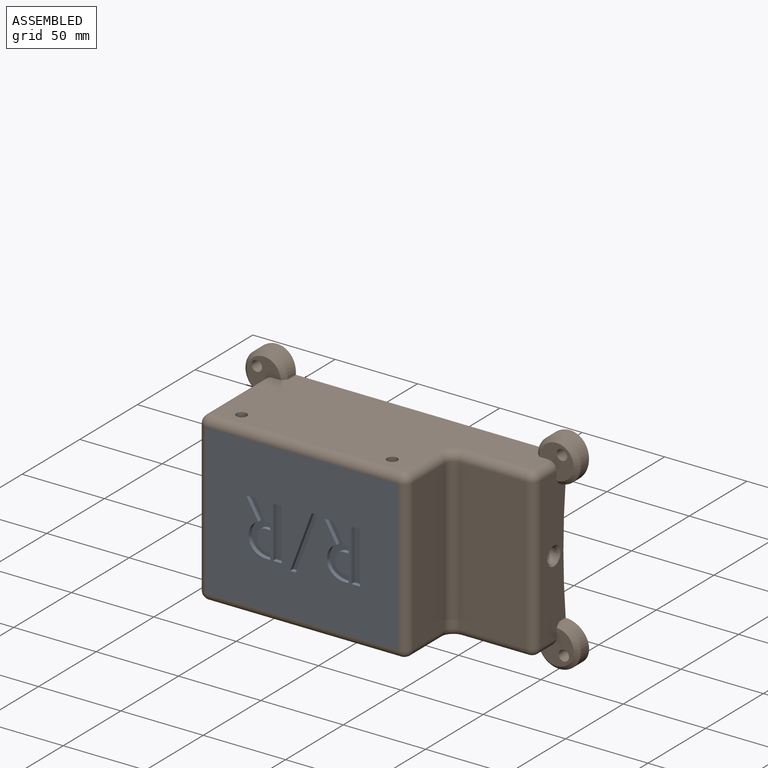
[diagram: assembled view]
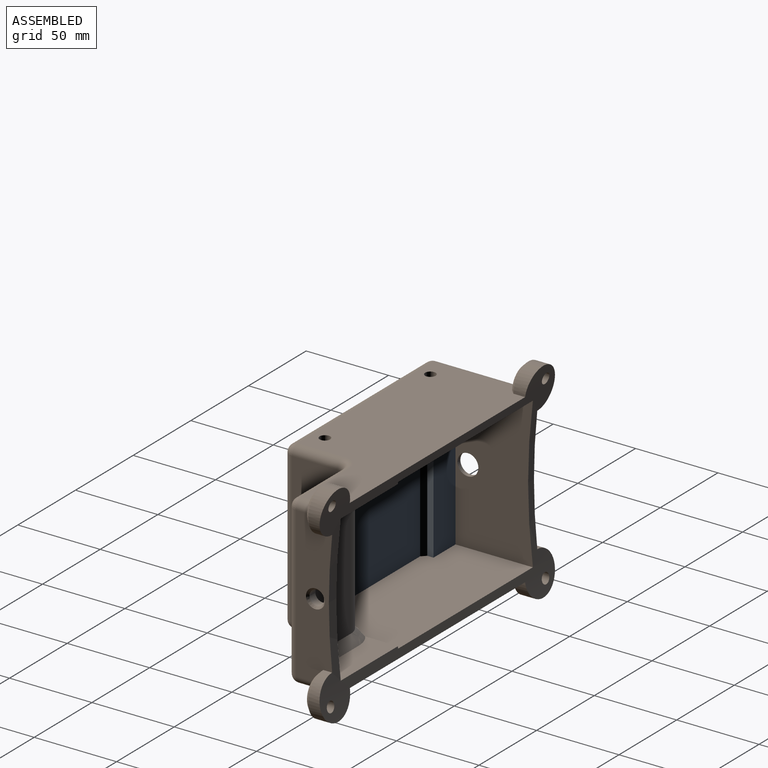
[diagram: assembled view, second angle]
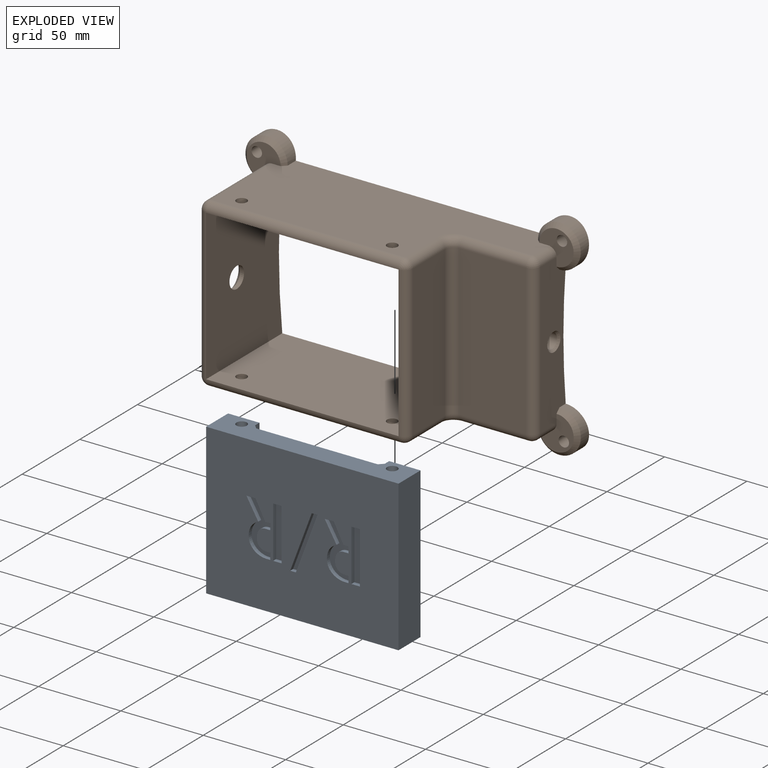
[diagram: exploded view]
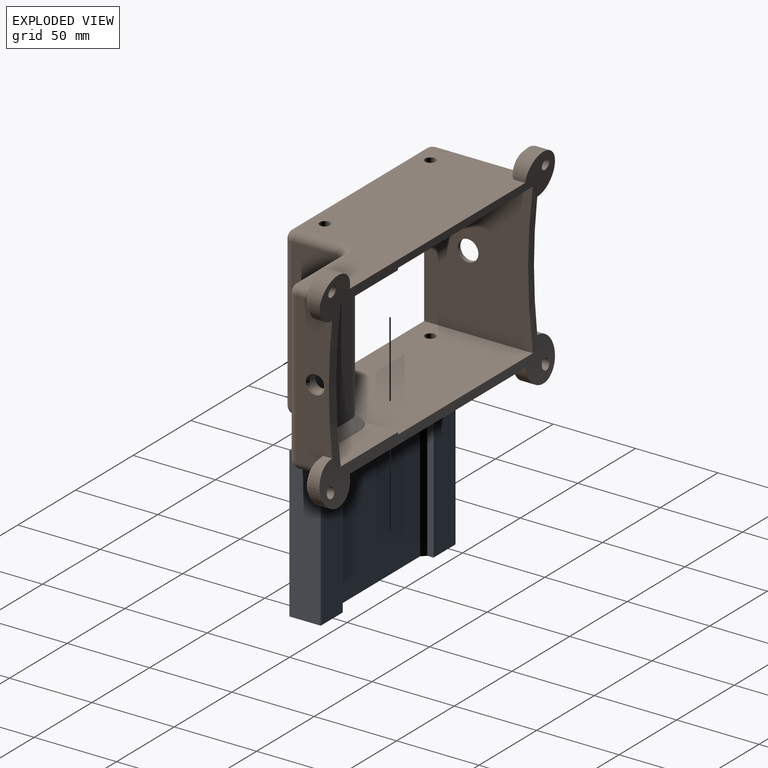
[diagram: exploded view, second angle]
ASSEMBLY  parts=2 mates=2
PART A: 83 faces, bbox 116.8x19.1x91.4 mm
  f0: plane 116.84x91.44mm, normal (0,1,0), area 9861.5mm2, adj f1,f7,f10,f11,f14,f15,f16,f17
  f1: plane 91.44x19.05mm, normal (-1,0,0), area 1741.9mm2, adj f0,f2,f10,f11
  f2: plane 91.44x19.05mm, normal (0,-1,0), area 1741.9mm2, adj f1,f3,f10,f11
  f3: plane 91.44x3.81mm, normal (1,0,0), area 348.4mm2, adj f2,f10,f11,f13
  f4: plane 91.44x73.66mm, normal (0,-1,0), area 6735.5mm2, adj f10,f11,f12,f13
  f5: plane 91.44x3.81mm, normal (-1,0,0), area 348.4mm2, adj f6,f10,f11,f12
  f6: plane 91.44x19.05mm, normal (0,-1,0), area 1741.9mm2, adj f5,f7,f10,f11
  f7: plane 91.44x19.05mm, normal (1,0,0), area 1741.9mm2, adj f0,f6,f10,f11
  f8: cylinder r=3.17mm len=91.44mm, axis (0,0,-1), area 1824.1mm2, adj f10,f11
  f9: cylinder r=3.17mm len=91.44mm, axis (0,0,-1), area 1824.1mm2, adj f10,f11
  f10: plane 116.84x19.05mm, normal (0,0,1), area 1668.9mm2, adj f0,f1,f2,f3,f4,f5,f6,f7
  f11: plane 116.84x19.05mm, normal (0,0,-1), area 1668.9mm2, adj f0,f1,f2,f3,f4,f5,f6,f7
  f12: plane 91.44x2.54mm, normal (-0.71,-0.71,0), area 328.5mm2, adj f4,f5,f10,f11
  f13: plane 91.44x2.54mm, normal (0.71,-0.71,0), area 328.5mm2, adj f3,f4,f10,f11
  f14: plane 12.37x7.16mm, normal (0.87,0,-0.5), area 36.3mm2, adj f0,f15,f39,f40
  f15: extruded ~4.26x3.53mm, area 14.3mm2, adj f0,f14,f16,f40
  f16: extruded ~5.8x2.54mm, area 15.5mm2, adj f0,f15,f17,f40
  f17: extruded ~4.08x2.54mm, area 10.7mm2, adj f0,f16,f18,f40
  f18: extruded ~3.09x2.54mm, area 10.2mm2, adj f0,f17,f19,f40
  f19: extruded ~3.52x2.54mm, area 10.2mm2, adj f0,f18,f20,f40
  f20: extruded ~3.96x2.54mm, area 10.2mm2, adj f0,f19,f21,f40
  f21: plane 2.54x2.18mm, normal (0,0,-1), area 5.5mm2, adj f0,f20,f22,f40
  f22: plane 3.88x2.54mm, normal (-1,0,0), area 9.8mm2, adj f0,f21,f23,f40
  f23: plane 2.54x2.09mm, normal (0,0,1), area 5.3mm2, adj f0,f22,f24,f40
  f24: extruded ~3.16x2.54mm, area 8.3mm2, adj f0,f23,f25,f40
  f25: extruded ~2.54x1.85mm, area 6.2mm2, adj f0,f24,f26,f40
  f26: extruded ~2.54x1.92mm, area 5.4mm2, adj f0,f25,f27,f40
  f27: extruded ~2.54x1.77mm, area 4.5mm2, adj f0,f26,f28,f40
  f28: extruded ~3.22x2.54mm, area 8.3mm2, adj f0,f27,f29,f40
  f29: extruded ~2.54x2.03mm, area 6.1mm2, adj f0,f28,f30,f40
  f30: extruded ~2.54x1.71mm, area 5.1mm2, adj f0,f29,f31,f40
  f31: extruded ~2.54x1.87mm, area 4.8mm2, adj f0,f30,f32,f40
  f32: plane 2.9x2.54mm, normal (0,0,-1), area 7.4mm2, adj f0,f31,f33,f40
  f33: plane 3.75x2.54mm, normal (-1,0,0), area 9.5mm2, adj f0,f32,f34,f40
  f34: plane 2.54x1.51mm, normal (0,0,1), area 3.8mm2, adj f0,f33,f35,f40
  f35: plane 2.54x0.88mm, normal (0,0,1), area 2.2mm2, adj f0,f34,f36,f40
  f36: extruded ~2.54x0.45mm, area 1.1mm2, adj f0,f35,f37,f40
  f37: extruded ~2.54x0.28mm, area 0.7mm2, adj f0,f36,f38,f40
  f38: plane 11.39x5.93mm, normal (-0.89,0,0.46), area 32.6mm2, adj f0,f37,f39,f40
  f39: plane 5.42x2.54mm, normal (0,0,1), area 13.8mm2, adj f0,f14,f38,f40
  f40: plane 31.43x14.46mm, normal (0,1,0), area 189.8mm2, adj f14,f15,f16,f17,f18,f19,f20,f21
  f41: plane 31.43x2.54mm, normal (-1,0,0), area 79.8mm2, adj f0,f42,f44,f45
  f42: plane 5.12x2.54mm, normal (0,0,1), area 13mm2, adj f0,f41,f43,f45
  f43: plane 31.43x2.54mm, normal (1,0,0), area 79.8mm2, adj f0,f42,f44,f45
  f44: plane 5.12x2.54mm, normal (0,0,-1), area 13mm2, adj f0,f41,f43,f45
  f45: plane 31.43x5.12mm, normal (0,1,0), area 160.8mm2, adj f41,f42,f43,f44
  f46: plane 12.37x7.16mm, normal (0.87,0,-0.5), area 36.3mm2, adj f0,f47,f71,f72
  f47: extruded ~4.26x3.53mm, area 14.3mm2, adj f0,f46,f48,f72
  f48: extruded ~5.8x2.54mm, area 15.5mm2, adj f0,f47,f49,f72
  f49: extruded ~4.08x2.54mm, area 10.7mm2, adj f0,f48,f50,f72
  f50: extruded ~3.09x2.54mm, area 10.2mm2, adj f0,f49,f51,f72
  f51: extruded ~3.52x2.54mm, area 10.2mm2, adj f0,f50,f52,f72
  f52: extruded ~3.96x2.54mm, area 10.2mm2, adj f0,f51,f53,f72
  f53: plane 2.54x2.18mm, normal (0,0,-1), area 5.5mm2, adj f0,f52,f54,f72
  f54: plane 3.88x2.54mm, normal (-1,0,0), area 9.8mm2, adj f0,f53,f55,f72
  f55: plane 2.54x2.09mm, normal (0,0,1), area 5.3mm2, adj f0,f54,f56,f72
  f56: extruded ~3.16x2.54mm, area 8.3mm2, adj f0,f55,f57,f72
  f57: extruded ~2.54x1.85mm, area 6.2mm2, adj f0,f56,f58,f72
  f58: extruded ~2.54x1.92mm, area 5.4mm2, adj f0,f57,f59,f72
  f59: extruded ~2.54x1.77mm, area 4.5mm2, adj f0,f58,f60,f72
  f60: extruded ~3.22x2.54mm, area 8.3mm2, adj f0,f59,f61,f72
  f61: extruded ~2.54x2.03mm, area 6.1mm2, adj f0,f60,f62,f72
  f62: extruded ~2.54x1.71mm, area 5.1mm2, adj f0,f61,f63,f72
  f63: extruded ~2.54x1.87mm, area 4.8mm2, adj f0,f62,f64,f72
  f64: plane 2.9x2.54mm, normal (0,0,-1), area 7.4mm2, adj f0,f63,f65,f72
  f65: plane 3.75x2.54mm, normal (-1,0,0), area 9.5mm2, adj f0,f64,f66,f72
  f66: plane 2.54x1.51mm, normal (0,0,1), area 3.8mm2, adj f0,f65,f67,f72
  f67: plane 2.54x0.88mm, normal (0,0,1), area 2.2mm2, adj f0,f66,f68,f72
  f68: extruded ~2.54x0.45mm, area 1.1mm2, adj f0,f67,f69,f72
  f69: extruded ~2.54x0.28mm, area 0.7mm2, adj f0,f68,f70,f72
  f70: plane 11.39x5.93mm, normal (-0.89,0,0.46), area 32.6mm2, adj f0,f69,f71,f72
  f71: plane 5.42x2.54mm, normal (0,0,1), area 13.8mm2, adj f0,f46,f70,f72
  f72: plane 31.43x14.46mm, normal (0,1,0), area 189.8mm2, adj f46,f47,f48,f49,f50,f51,f52,f53
  f73: plane 31.43x2.54mm, normal (-1,0,0), area 79.8mm2, adj f0,f74,f76,f77
  f74: plane 5.12x2.54mm, normal (0,0,1), area 13mm2, adj f0,f73,f75,f77
  f75: plane 31.43x2.54mm, normal (1,0,0), area 79.8mm2, adj f0,f74,f76,f77
  f76: plane 5.12x2.54mm, normal (0,0,-1), area 13mm2, adj f0,f73,f75,f77
  f77: plane 31.43x5.12mm, normal (0,1,0), area 160.8mm2, adj f73,f74,f75,f76
  f78: plane 35.02x13.09mm, normal (0.94,0,0.35), area 95mm2, adj f0,f79,f81,f82
  f79: plane 3.46x2.54mm, normal (0,0,-1), area 8.8mm2, adj f0,f78,f80,f82
  f80: plane 35.02x13.09mm, normal (-0.94,0,-0.35), area 95mm2, adj f0,f79,f81,f82
  f81: plane 3.45x2.54mm, normal (0,0,1), area 8.8mm2, adj f0,f78,f80,f82
  f82: plane 35.02x16.55mm, normal (0,1,0), area 121mm2, adj f78,f79,f80,f81
PART B: 67 faces, bbox 203.6x68.8x127.6 mm
  f0: plane 49.53x19.85mm, normal (0,0,-1), area 821.3mm2, adj f4,f19,f22,f58,f66
  f1: plane 49.53x19.85mm, normal (0,0,1), area 821.3mm2, adj f3,f19,f21,f58,f66
  f2: cylinder r=11.43mm len=78.74mm, axis (0,0,1), area 985.4mm2, adj f3,f4,f20,f58
  f3: cone r=11.43mm half-angle=45deg, axis (0,0,-1), area 82.5mm2, adj f1,f2,f21,f58
  f4: cone r=16.51mm half-angle=45deg, axis (0,0,1), area 82.5mm2, adj f0,f2,f22,f58
  f5: plane 167.64x61.65mm, normal (0,0,-1), area 8214.4mm2, adj f12,f17,f18,f28,f29,f30,f31,f36
  f6: plane 91.44x60.06mm, normal (-1,0,0), area 5024.7mm2, adj f24,f25,f28,f29,f36,f38,f40,f45
  f7: plane 91.44x27.94mm, normal (1,0,0), area 2554.8mm2, adj f11,f12,f16,f47
  f8: plane 167.64x61.65mm, normal (0,0,1), area 8214.8mm2, adj f11,f13,f14,f24,f25,f26,f27,f37
  f9: plane 91.44x21.94mm, normal (1,0,0), area 1683.7mm2, adj f15,f26,f27,f30,f31,f37,f39,f41
  f10: plane 91.44x40.64mm, normal (0,-1,0), area 3716.1mm2, adj f13,f15,f16,f17
  f11: cylinder r=5.08mm len=27.94mm, axis (0,1,0), area 223mm2, adj f7,f8,f14,f49
  f12: cylinder r=5.08mm len=27.94mm, axis (0,-1,0), area 223mm2, adj f5,f7,f18,f46
  f13: cylinder r=5.08mm len=40.64mm, axis (1,0,0), area 324.3mm2, adj f8,f10,f14,f42
  f14: torus R=10.16mm, axis (0,0,1), area 86.8mm2, adj f8,f11,f13,f16
  f15: cylinder r=5.08mm len=91.44mm, axis (0,0,-1), area 729.7mm2, adj f9,f10,f42,f44
  f16: cylinder r=5.08mm len=91.44mm, axis (0,0,1), area 729.7mm2, adj f7,f10,f14,f18
  f17: cylinder r=5.08mm len=40.64mm, axis (-1,0,0), area 324.3mm2, adj f5,f10,f18,f44
  f18: torus R=10.16mm, axis (0,0,1), area 86.8mm2, adj f5,f12,f16,f17
  f19: plane 88.9x16.35mm, normal (-1,0,0), area 1228.7mm2, adj f0,f1,f23,f54,f66
  f20: plane 78.74x34.29mm, normal (0,1,0), area 2700mm2, adj f2,f21,f22,f23
  f21: plane 39.37x5.08mm, normal (0,0.71,0.71), area 264.6mm2, adj f1,f3,f20,f23
  f22: plane 39.37x5.08mm, normal (0,0.71,-0.71), area 264.6mm2, adj f0,f4,f20,f23
  f23: plane 88.9x5.08mm, normal (-0.71,0.71,0), area 602.2mm2, adj f19,f20,f21,f22
  f24: cylinder r=12.82mm len=25.64mm, axis (0,1,0), area 455.8mm2, adj f6,f8,f38,f66
  f25: plane 20.56x20.56mm, normal (0,-1,0), area 223mm2, adj f6,f8,f32,f38,f45
  f26: cylinder r=12.98mm len=25.96mm, axis (0,1,0), area 461.8mm2, adj f8,f9,f37,f66
  f27: plane 20.88x20.88mm, normal (0,-1,0), area 230.6mm2, adj f8,f9,f35,f37,f41
  f28: cylinder r=12.82mm len=25.64mm, axis (0,1,0), area 455.8mm2, adj f5,f6,f36,f66
  f29: plane 20.56x20.56mm, normal (0,-1,0), area 223mm2, adj f5,f6,f33,f36,f40
  f30: cylinder r=13.02mm len=26.05mm, axis (0,1,0), area 463.6mm2, adj f5,f9,f39,f66
  f31: plane 20.97x20.97mm, normal (0,-1,0), area 232.9mm2, adj f5,f9,f34,f39,f43
  f32: cylinder r=3.17mm len=10.66mm, axis (0,-1,0), area 202.8mm2, adj f25,f66
  f33: cylinder r=3.17mm len=10.68mm, axis (0,-1,0), area 203.2mm2, adj f29,f66
  f34: cylinder r=3.17mm len=10.61mm, axis (0,-1,0), area 201.8mm2, adj f31,f66
  f35: cylinder r=3.17mm len=10.78mm, axis (0,-1,0), area 205mm2, adj f27,f66
  f36: cone r=12.82mm half-angle=45deg, axis (0,1,0), area 195.5mm2, adj f5,f6,f28,f29
  f37: cone r=12.98mm half-angle=45deg, axis (0,1,0), area 198.2mm2, adj f8,f9,f26,f27
  f38: cone r=12.82mm half-angle=45deg, axis (0,1,0), area 195.5mm2, adj f6,f8,f24,f25
  f39: cone r=13.02mm half-angle=45deg, axis (0,1,0), area 199mm2, adj f5,f9,f30,f31
  f40: cylinder r=5.08mm len=52.07mm, axis (0,1,0), area 415.5mm2, adj f5,f6,f29,f50
  f41: cylinder r=5.08mm len=13.97mm, axis (0,1,0), area 111.5mm2, adj f8,f9,f27,f42
  f42: sphere r=5.08mm, area 40.5mm2, adj f13,f15,f41
  f43: cylinder r=5.08mm len=13.97mm, axis (0,-1,0), area 111.5mm2, adj f5,f9,f31,f44
  f44: sphere r=5.08mm, area 40.5mm2, adj f15,f17,f43
  f45: cylinder r=5.08mm len=52.07mm, axis (0,-1,0), area 415.5mm2, adj f6,f8,f25,f53
  f46: sphere r=5.08mm, area 40.5mm2, adj f12,f47,f48
  f47: cylinder r=5.08mm len=91.44mm, axis (0,0,-1), area 729.7mm2, adj f7,f46,f49,f58
  f48: cylinder r=5.08mm len=116.84mm, axis (-1,0,0), area 932.3mm2, adj f5,f46,f50,f59
  f49: sphere r=5.08mm, area 40.5mm2, adj f11,f47,f51
  f50: sphere r=5.08mm, area 40.5mm2, adj f40,f48,f52
  f51: cylinder r=5.08mm len=116.84mm, axis (1,0,0), area 932.3mm2, adj f8,f49,f53,f60
  f52: cylinder r=5.08mm len=91.44mm, axis (0,0,1), area 729.7mm2, adj f6,f50,f53,f61
  f53: sphere r=5.08mm, area 40.5mm2, adj f45,f51,f52
  f54: cylinder r=4.45mm len=8.89mm, axis (1,0,0), area 141.9mm2, adj f19,f55
  f55: cone r=4.45mm half-angle=45deg, axis (1,0,0), area 57.3mm2, adj f9,f54
  f56: cylinder r=6.35mm len=12.7mm, axis (-1,0,0), area 101.3mm2, adj f57,f61
  f57: cone r=6.35mm half-angle=45deg, axis (-1,0,0), area 172mm2, adj f6,f56
  f58: plane 91.44x66.04mm, normal (-1,0,0), area 3611.3mm2, adj f0,f1,f2,f3,f4,f47,f59,f60
  f59: plane 116.84x66.04mm, normal (0,0,1), area 7653.2mm2, adj f48,f58,f61,f64,f65,f66
  f60: plane 116.84x66.04mm, normal (0,0,-1), area 7653.2mm2, adj f51,f58,f61,f62,f63,f66
  f61: plane 91.44x66.04mm, normal (1,0,0), area 5734.9mm2, adj f52,f56,f59,f60,f66
  f62: cylinder r=3.17mm len=6.35mm, axis (0,0,-1), area 101.3mm2, adj f8,f60
  f63: cylinder r=3.17mm len=6.35mm, axis (0,0,-1), area 101.3mm2, adj f8,f60
  f64: cylinder r=3.17mm len=6.35mm, axis (0,0,-1), area 101.3mm2, adj f5,f59
  f65: cylinder r=3.17mm len=6.35mm, axis (0,0,-1), area 101.3mm2, adj f5,f59
  f66: cylinder r=360.77mm len=203.65mm, axis (-1,0,0), area 4458.5mm2, adj f0,f1,f5,f6,f8,f9,f19,f24
PLACE A rot(axis=(1,0,0),180deg) t=(-51.88,-10.82,44.41)mm
PLACE B t=(-33.93,19.11,-1.31)mm
MATE pin_slot A.f9 <-> B.f62  axis (0,0,-1) through (-13.61,-38.04,-47.03)mm
MATE pin_slot A.f9 <-> B.f62  axis (0,0,1) through (-13.61,-38.04,44.41)mm
